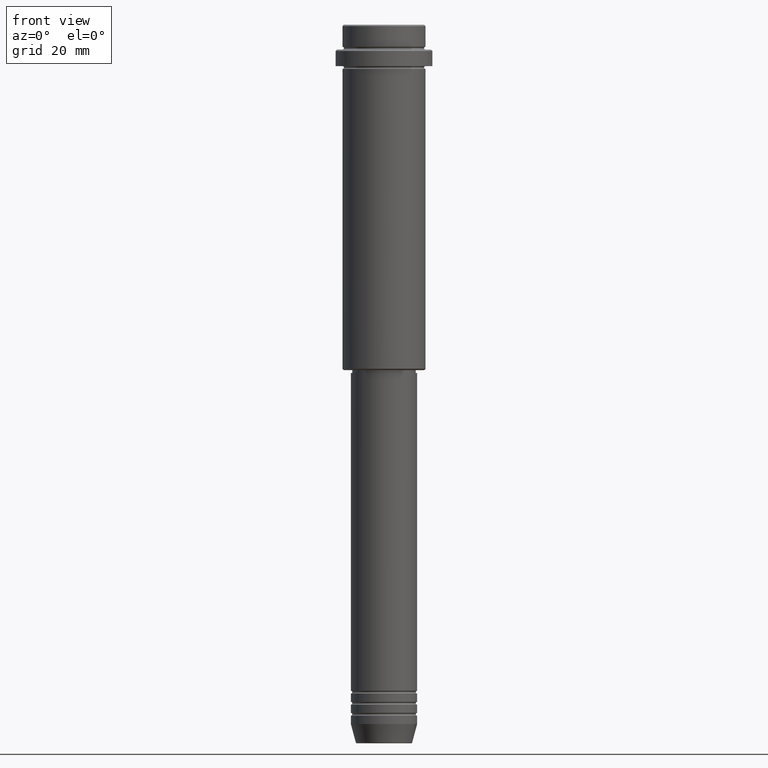
[diagram: clean part render]
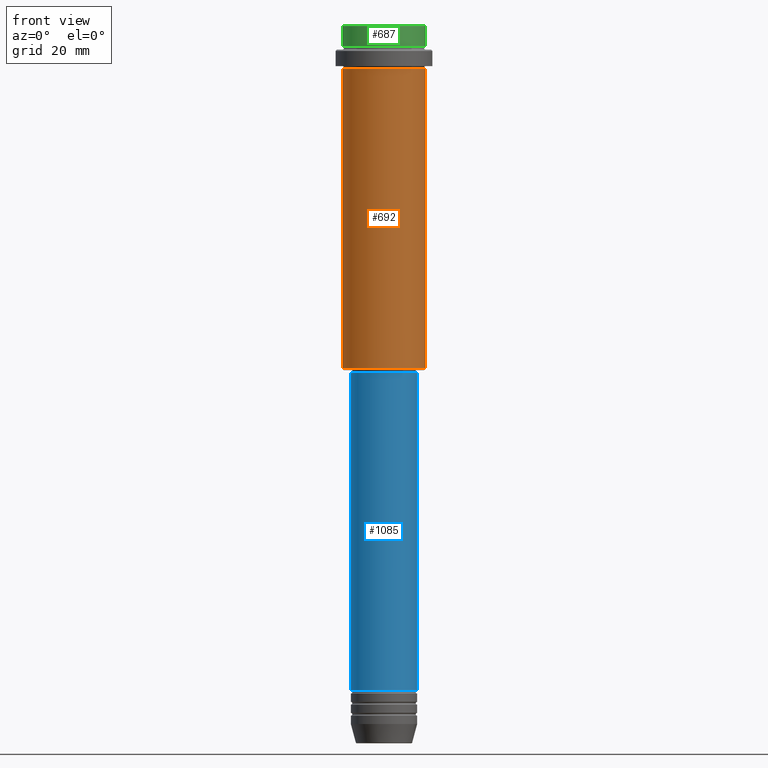
[diagram: same view with three faces highlighted in distinct colors, each labeled with its STEP entity id]
A machine part, front view with three faces highlighted in distinct colors.
Their STEP definitions:

[orange] entity #692 — the highlighted cylindrical surface (partial cylindrical patch) has radius 15 mm, axis along (-0, -0, 1).
#11 = ORIENTED_EDGE ( 'NONE', *, *, #830, .F. ) ;
#126 = VERTEX_POINT ( 'NONE', #526 ) ;
#127 = FACE_OUTER_BOUND ( 'NONE', #197, .T. ) ;
#140 = DIRECTION ( 'NONE',  ( 1.000000000000000000, 0.000000000000000000, 0.000000000000000000 ) ) ;
#148 = LINE ( 'NONE', #257, #795 ) ;
#183 = CIRCLE ( 'NONE', #616, 15.00000000000000000 ) ;
#197 = EDGE_LOOP ( 'NONE', ( #592, #1378, #722, #11 ) ) ;
#242 = CYLINDRICAL_SURFACE ( 'NONE', #1143, 15.00000000000000000 ) ;
#243 = EDGE_CURVE ( 'NONE', #126, #894, #148, .T. ) ;
#257 = CARTESIAN_POINT ( 'NONE',  ( 15.00000000000000000, 0.000000000000000000, 0.000000000000000000 ) ) ;
#356 = DIRECTION ( 'NONE',  ( -0.000000000000000000, -0.000000000000000000, 1.000000000000000000 ) ) ;
#470 = CARTESIAN_POINT ( 'NONE',  ( -15.00000000000000000, 1.836970198721029589E-15, 0.000000000000000000 ) ) ;
#488 = EDGE_CURVE ( 'NONE', #504, #126, #183, .T. ) ;
#504 = VERTEX_POINT ( 'NONE', #640 ) ;
#526 = CARTESIAN_POINT ( 'NONE',  ( 15.00000000000000000, 0.000000000000000000, -124.4999999999999574 ) ) ;
#592 = ORIENTED_EDGE ( 'NONE', *, *, #736, .F. ) ;
#604 = DIRECTION ( 'NONE',  ( 1.000000000000000000, 0.000000000000000000, 0.000000000000000000 ) ) ;
#616 = AXIS2_PLACEMENT_3D ( 'NONE', #1291, #631, #942 ) ;
#631 = DIRECTION ( 'NONE',  ( -0.000000000000000000, -0.000000000000000000, 1.000000000000000000 ) ) ;
#640 = CARTESIAN_POINT ( 'NONE',  ( -15.00000000000000000, 1.836970198721029589E-15, -124.4999999999999574 ) ) ;
#692 = ADVANCED_FACE ( 'NONE', ( #127 ), #242, .T. ) ;
#722 = ORIENTED_EDGE ( 'NONE', *, *, #243, .T. ) ;
#736 = EDGE_CURVE ( 'NONE', #504, #940, #1149, .T. ) ;
#795 = VECTOR ( 'NONE', #356, 1000.000000000000000 ) ;
#830 = EDGE_CURVE ( 'NONE', #940, #894, #1301, .T. ) ;
#894 = VERTEX_POINT ( 'NONE', #1170 ) ;
#897 = CARTESIAN_POINT ( 'NONE',  ( 0.000000000000000000, 0.000000000000000000, 0.000000000000000000 ) ) ;
#934 = CARTESIAN_POINT ( 'NONE',  ( 0.000000000000000000, 0.000000000000000000, -16.00000000000000000 ) ) ;
#940 = VERTEX_POINT ( 'NONE', #1052 ) ;
#942 = DIRECTION ( 'NONE',  ( -1.000000000000000000, 0.000000000000000000, 0.000000000000000000 ) ) ;
#1052 = CARTESIAN_POINT ( 'NONE',  ( -15.00000000000000355, 1.836970198721029983E-15, -16.00000000000000000 ) ) ;
#1070 = VECTOR ( 'NONE', #1247, 1000.000000000000000 ) ;
#1120 = DIRECTION ( 'NONE',  ( -0.000000000000000000, -0.000000000000000000, 1.000000000000000000 ) ) ;
#1143 = AXIS2_PLACEMENT_3D ( 'NONE', #897, #1120, #140 ) ;
#1149 = LINE ( 'NONE', #470, #1070 ) ;
#1170 = CARTESIAN_POINT ( 'NONE',  ( 15.00000000000000178, 0.000000000000000000, -16.00000000000000000 ) ) ;
#1247 = DIRECTION ( 'NONE',  ( -0.000000000000000000, -0.000000000000000000, 1.000000000000000000 ) ) ;
#1291 = CARTESIAN_POINT ( 'NONE',  ( 0.000000000000000000, 0.000000000000000000, -124.4999999999999574 ) ) ;
#1301 = CIRCLE ( 'NONE', #1389, 15.00000000000000178 ) ;
#1371 = DIRECTION ( 'NONE',  ( -0.000000000000000000, -0.000000000000000000, 1.000000000000000000 ) ) ;
#1378 = ORIENTED_EDGE ( 'NONE', *, *, #488, .T. ) ;
#1389 = AXIS2_PLACEMENT_3D ( 'NONE', #934, #1371, #604 ) ;

[blue] entity #1085 — the highlighted cylindrical surface (edge-blend (fillet) strip) has radius 12 mm, axis along (-0, -0, 1).
#22 = DIRECTION ( 'NONE',  ( -0.000000000000000000, -0.000000000000000000, 1.000000000000000000 ) ) ;
#80 = CARTESIAN_POINT ( 'NONE',  ( 12.00000000000000000, 0.000000000000000000, -240.9999999999999147 ) ) ;
#93 = DIRECTION ( 'NONE',  ( 1.000000000000000000, 0.000000000000000000, 0.000000000000000000 ) ) ;
#98 = EDGE_CURVE ( 'NONE', #124, #434, #306, .T. ) ;
#120 = EDGE_CURVE ( 'NONE', #1397, #124, #496, .T. ) ;
#124 = VERTEX_POINT ( 'NONE', #80 ) ;
#219 = VERTEX_POINT ( 'NONE', #1122 ) ;
#282 = EDGE_LOOP ( 'NONE', ( #413, #828, #1146, #397 ) ) ;
#301 = CARTESIAN_POINT ( 'NONE',  ( 0.000000000000000000, 0.000000000000000000, -240.9999999999999147 ) ) ;
#306 = LINE ( 'NONE', #517, #1040 ) ;
#329 = CARTESIAN_POINT ( 'NONE',  ( 0.000000000000000000, 0.000000000000000000, 0.000000000000000000 ) ) ;
#394 = CARTESIAN_POINT ( 'NONE',  ( 0.000000000000000000, 0.000000000000000000, -126.0000000000000000 ) ) ;
#397 = ORIENTED_EDGE ( 'NONE', *, *, #840, .F. ) ;
#400 = EDGE_CURVE ( 'NONE', #1397, #219, #695, .T. ) ;
#413 = ORIENTED_EDGE ( 'NONE', *, *, #400, .F. ) ;
#434 = VERTEX_POINT ( 'NONE', #600 ) ;
#492 = DIRECTION ( 'NONE',  ( 1.000000000000000000, 0.000000000000000000, 0.000000000000000000 ) ) ;
#496 = CIRCLE ( 'NONE', #680, 12.00000000000000000 ) ;
#503 = DIRECTION ( 'NONE',  ( -0.000000000000000000, -0.000000000000000000, 1.000000000000000000 ) ) ;
#517 = CARTESIAN_POINT ( 'NONE',  ( 12.00000000000000000, 0.000000000000000000, 0.000000000000000000 ) ) ;
#520 = VECTOR ( 'NONE', #503, 1000.000000000000000 ) ;
#544 = CYLINDRICAL_SURFACE ( 'NONE', #659, 12.00000000000000000 ) ;
#600 = CARTESIAN_POINT ( 'NONE',  ( 11.99999999999999822, 0.000000000000000000, -126.0000000000000000 ) ) ;
#656 = DIRECTION ( 'NONE',  ( -0.000000000000000000, -0.000000000000000000, 1.000000000000000000 ) ) ;
#659 = AXIS2_PLACEMENT_3D ( 'NONE', #329, #22, #1310 ) ;
#662 = CIRCLE ( 'NONE', #866, 11.99999999999999822 ) ;
#680 = AXIS2_PLACEMENT_3D ( 'NONE', #301, #735, #93 ) ;
#694 = DIRECTION ( 'NONE',  ( -0.000000000000000000, -0.000000000000000000, 1.000000000000000000 ) ) ;
#695 = LINE ( 'NONE', #1132, #520 ) ;
#735 = DIRECTION ( 'NONE',  ( -0.000000000000000000, -0.000000000000000000, 1.000000000000000000 ) ) ;
#828 = ORIENTED_EDGE ( 'NONE', *, *, #120, .T. ) ;
#840 = EDGE_CURVE ( 'NONE', #219, #434, #662, .T. ) ;
#866 = AXIS2_PLACEMENT_3D ( 'NONE', #394, #694, #492 ) ;
#876 = FACE_OUTER_BOUND ( 'NONE', #282, .T. ) ;
#1040 = VECTOR ( 'NONE', #656, 1000.000000000000000 ) ;
#1085 = ADVANCED_FACE ( 'NONE', ( #876 ), #544, .T. ) ;
#1122 = CARTESIAN_POINT ( 'NONE',  ( -11.99999999999999822, 1.469576158976823750E-15, -126.0000000000000000 ) ) ;
#1132 = CARTESIAN_POINT ( 'NONE',  ( -12.00000000000000000, 1.469576158976823947E-15, 0.000000000000000000 ) ) ;
#1146 = ORIENTED_EDGE ( 'NONE', *, *, #98, .T. ) ;
#1175 = CARTESIAN_POINT ( 'NONE',  ( -12.00000000000000000, 1.469576158976823947E-15, -240.9999999999999147 ) ) ;
#1310 = DIRECTION ( 'NONE',  ( 1.000000000000000000, 0.000000000000000000, 0.000000000000000000 ) ) ;
#1397 = VERTEX_POINT ( 'NONE', #1175 ) ;

[green] entity #687 — the highlighted cylindrical surface (partial cylindrical patch) has radius 15 mm, axis along (-0, -0, 1).
#57 = VERTEX_POINT ( 'NONE', #1282 ) ;
#224 = VERTEX_POINT ( 'NONE', #800 ) ;
#297 = AXIS2_PLACEMENT_3D ( 'NONE', #548, #797, #1086 ) ;
#317 = VECTOR ( 'NONE', #1190, 1000.000000000000000 ) ;
#318 = AXIS2_PLACEMENT_3D ( 'NONE', #1357, #489, #1261 ) ;
#320 = CARTESIAN_POINT ( 'NONE',  ( 0.000000000000000000, 0.000000000000000000, -0.5000000000000108802 ) ) ;
#437 = EDGE_CURVE ( 'NONE', #1413, #224, #1411, .T. ) ;
#489 = DIRECTION ( 'NONE',  ( -0.000000000000000000, -0.000000000000000000, 1.000000000000000000 ) ) ;
#500 = EDGE_CURVE ( 'NONE', #57, #1348, #546, .T. ) ;
#507 = DIRECTION ( 'NONE',  ( -0.000000000000000000, -0.000000000000000000, 1.000000000000000000 ) ) ;
#525 = DIRECTION ( 'NONE',  ( 0.000000000000000000, 0.000000000000000000, -1.000000000000000000 ) ) ;
#546 = CIRCLE ( 'NONE', #637, 15.00000000000000000 ) ;
#548 = CARTESIAN_POINT ( 'NONE',  ( 0.000000000000000000, 0.000000000000000000, 0.000000000000000000 ) ) ;
#553 = CYLINDRICAL_SURFACE ( 'NONE', #297, 15.00000000000000000 ) ;
#558 = ORIENTED_EDGE ( 'NONE', *, *, #437, .T. ) ;
#624 = CARTESIAN_POINT ( 'NONE',  ( -15.00000000000000000, 1.836970198721029589E-15, 0.000000000000000000 ) ) ;
#637 = AXIS2_PLACEMENT_3D ( 'NONE', #320, #525, #1197 ) ;
#687 = ADVANCED_FACE ( 'NONE', ( #1312 ), #553, .T. ) ;
#754 = LINE ( 'NONE', #1182, #1017 ) ;
#797 = DIRECTION ( 'NONE',  ( -0.000000000000000000, -0.000000000000000000, 1.000000000000000000 ) ) ;
#800 = CARTESIAN_POINT ( 'NONE',  ( 15.00000000000000000, 0.000000000000000000, -7.999999999999998224 ) ) ;
#851 = ORIENTED_EDGE ( 'NONE', *, *, #1379, .T. ) ;
#933 = CARTESIAN_POINT ( 'NONE',  ( -15.00000000000000000, 1.836970198721029589E-15, -7.999999999999998224 ) ) ;
#1017 = VECTOR ( 'NONE', #507, 1000.000000000000000 ) ;
#1029 = ORIENTED_EDGE ( 'NONE', *, *, #500, .T. ) ;
#1086 = DIRECTION ( 'NONE',  ( 1.000000000000000000, 0.000000000000000000, 0.000000000000000000 ) ) ;
#1129 = CARTESIAN_POINT ( 'NONE',  ( -15.00000000000000000, 1.836970198721029589E-15, -0.5000000000000108802 ) ) ;
#1182 = CARTESIAN_POINT ( 'NONE',  ( 15.00000000000000000, 0.000000000000000000, 0.000000000000000000 ) ) ;
#1190 = DIRECTION ( 'NONE',  ( -0.000000000000000000, -0.000000000000000000, 1.000000000000000000 ) ) ;
#1197 = DIRECTION ( 'NONE',  ( 1.000000000000000000, 0.000000000000000000, 0.000000000000000000 ) ) ;
#1261 = DIRECTION ( 'NONE',  ( 1.000000000000000000, 0.000000000000000000, 0.000000000000000000 ) ) ;
#1282 = CARTESIAN_POINT ( 'NONE',  ( 15.00000000000000000, 0.000000000000000000, -0.5000000000000108802 ) ) ;
#1283 = ORIENTED_EDGE ( 'NONE', *, *, #1349, .F. ) ;
#1312 = FACE_OUTER_BOUND ( 'NONE', #1324, .T. ) ;
#1324 = EDGE_LOOP ( 'NONE', ( #1283, #558, #851, #1029 ) ) ;
#1348 = VERTEX_POINT ( 'NONE', #1129 ) ;
#1349 = EDGE_CURVE ( 'NONE', #1413, #1348, #1374, .T. ) ;
#1357 = CARTESIAN_POINT ( 'NONE',  ( 0.000000000000000000, 0.000000000000000000, -7.999999999999998224 ) ) ;
#1374 = LINE ( 'NONE', #624, #317 ) ;
#1379 = EDGE_CURVE ( 'NONE', #224, #57, #754, .T. ) ;
#1411 = CIRCLE ( 'NONE', #318, 15.00000000000000000 ) ;
#1413 = VERTEX_POINT ( 'NONE', #933 ) ;